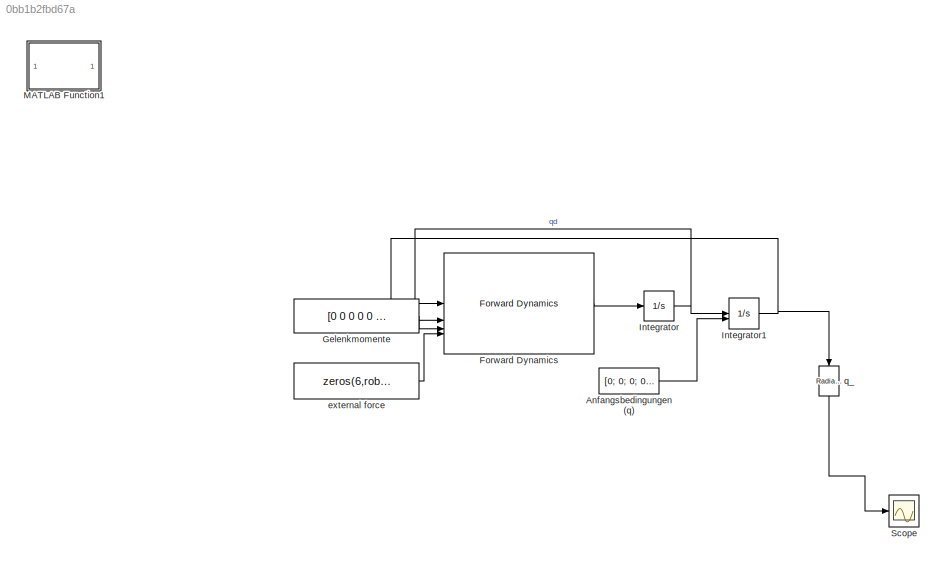
MODEL slx_0bb1b2fbd67a
KIND model
CONFIG AbsTol = auto
CONFIG EnableMultiTasking = off
CONFIG FixedStep = auto
CONFIG MaxStep = auto
CONFIG MinStep = auto
CONFIG RelTol = 1e-3
CONFIG SampleTimeConstraint = Unconstrained
CONFIG SolverName = VariableStepAuto
CONFIG StartTime = 0.0
CONFIG StopTime = 10.0
BLOCK [Constant] Anfangsbedingungen (q)
  Value = [0; 0; 0; 0; 0; 0; 0]
BLOCK [Reference] Forward Dynamics  REF=robotmaniplib/Forward Dynamics
  SourceBlock = robotmaniplib/Forward Dynamics
  SourceType = Forward Dynamics
BLOCK [Constant] Gelenkmomente
  Value = [0 0 0 0 0 0 0]'
BLOCK [Integrator] Integrator
BLOCK [Integrator] Integrator1
  InitialCondition = conf.qs
  InitialConditionSource = external
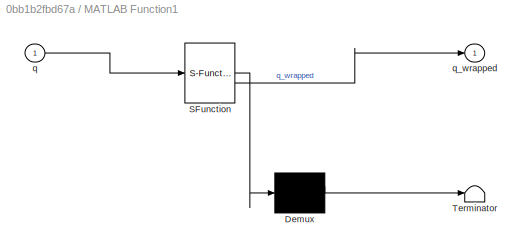
BLOCK [SubSystem] MATLAB Function1
  Commented = on
  ErrorFcn = Stateflow.Translate.translate
  PermitHierarchicalResolution = ExplicitOnly
  SFBlockType = MATLAB Function
  TreatAsAtomicUnit = on
BLOCK [Demux] MATLAB Function1/ Demux 
  Outputs = 1
BLOCK [S-Function] MATLAB Function1/ SFunction 
  EnableBusSupport = on
  FunctionName = sf_sfun
  PortCounts = [1 2]
  SFcnIsStateOwnerBlock = off
  SFunctionDeploymentMode = off
  Tag = Stateflow S-Function 2
BLOCK [Terminator] MATLAB Function1/ Terminator 
BLOCK [Inport] MATLAB Function1/q
BLOCK [Outport] MATLAB Function1/q_wrapped
BLOCK [Scope] Scope
  Floating = off
  NumInputPorts = 1
  ScopeSpecificationString = Simulink.scopes.TimeScopeBlockCfg('CurrentConfiguration', extmgr.ConfigurationSet(extmgr.Configuration('Core','General UI',true),extmgr.Configuration('Core','Source UI',true),extmgr.Configuration('Sources','WiredSimulink',true),extmgr.Configuration('Visuals','Time Domain',true,'SerializedDisplays',{struct('MinYLimReal','-1.00000','MaxYLimReal','1.00000','YLabelReal','','MinYLimMag','0.00000','MaxY...<+1527ch>
BLOCK [Constant] external force
  Value = zeros(6,robot.NumBodies)
BLOCK [Reference] q_  REF=simulink_extras/Transformations/Radians
to Degrees
  NameLocation = left
  SourceBlock = simulink_extras/Transformations/Radians\nto Degrees
  SourceType = RadiansToDegrees
LINE Anfangsbedingungen (q):1 -> Integrator1:2
LINE Forward Dynamics:1 -> Integrator:1
LINE Gelenkmomente:1 -> Forward Dynamics:3
NET Integrator1:1 -> Forward Dynamics:1, q_:1
NET Integrator:1 -> Forward Dynamics:2, Integrator1:1
LINE external force:1 -> Forward Dynamics:4
LINE q_:1 -> Scope:1
note: NET lines group one-source signal fan-out (src -> all destinations, sorted); 1:1 wires keep LINE
CHART MATLAB Function1 states=1 transitions=1
  STATE_LABEL 'eML_blk_kernel()'
  STATE_LABEL 'SCRIPT:\nfunction q_wrapped = wrapToPiFunction(q)\n    q_wrapped = wrapToPi(q);\nend\n'
CHART  states=0 transitions=0
